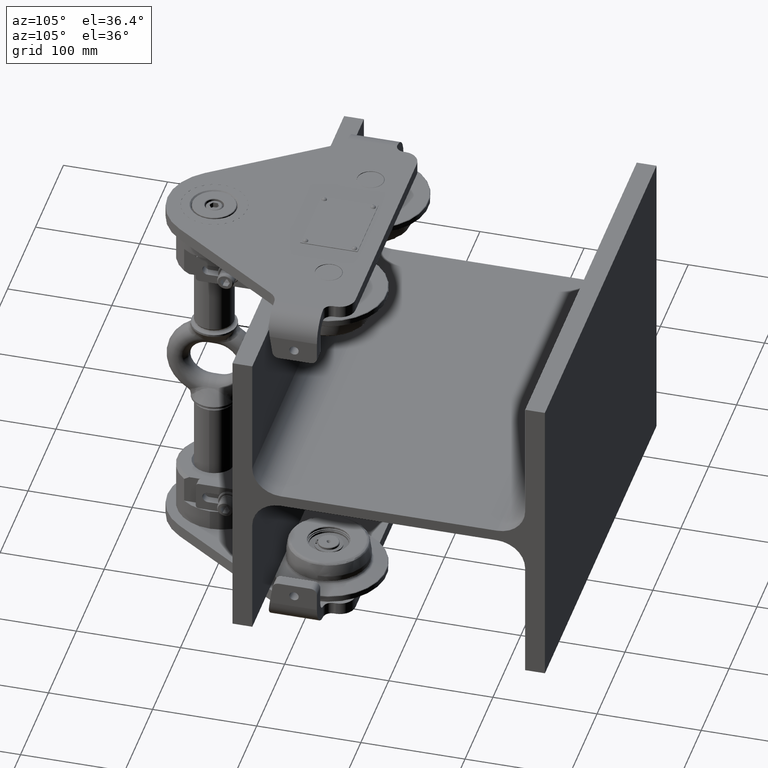
[diagram: clean part render]
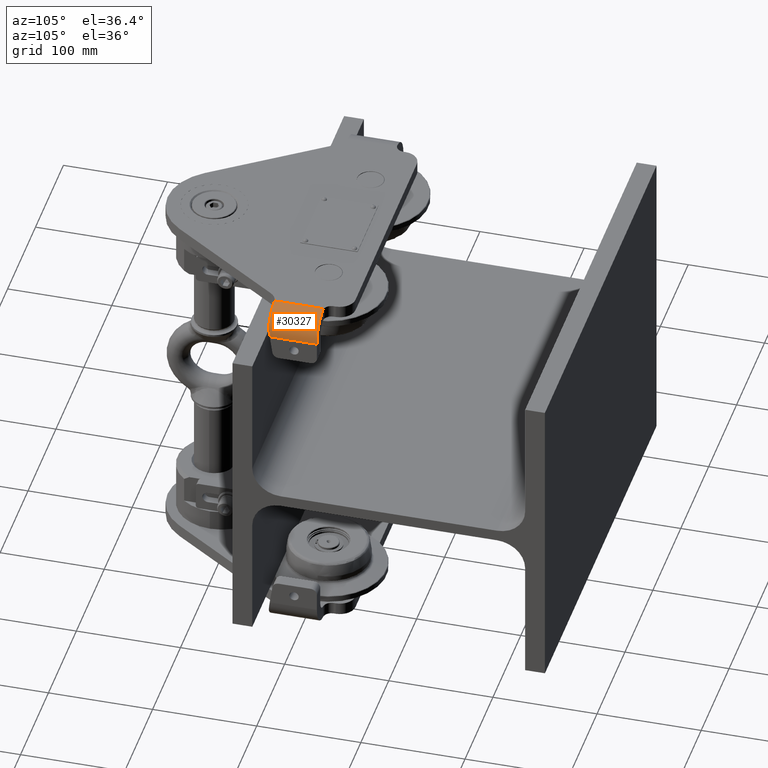
[diagram: same view with one face highlighted and labeled with its STEP entity id]
A machine part, auxiliary view. The second image highlights one B-rep face of the part: STEP entity #30327.
In plain terms, the highlighted cylindrical surface (edge-blend (fillet) strip) has radius 24 mm, axis along (-0, 1, -0).
Its self-contained STEP definition (entity closure, byte-faithful):
#640 = B_SPLINE_CURVE_WITH_KNOTS ( 'NONE', 3,
 ( #6642, #35881, #10839, #35511 ),
 .UNSPECIFIED., .F., .F.,
 ( 4, 4 ),
 ( 0.0000000000000000000, 0.001827743999848610300 ),
 .UNSPECIFIED. ) ;
#2016 = CARTESIAN_POINT ( 'NONE',  ( 153.9032902444616900, -127.4842625883007200, 161.3303376360957200 ) ) ;
#2401 = CARTESIAN_POINT ( 'NONE',  ( 131.6570357428104500, -80.91561259173251100, 176.9999999999999100 ) ) ;
#3962 = VECTOR ( 'NONE', #23849, 1000.000000000000000 ) ;
#4377 = CARTESIAN_POINT ( 'NONE',  ( 151.7846096908264400, -127.9999999999998300, 165.0000000000000900 ) ) ;
#4496 = ORIENTED_EDGE ( 'NONE', *, *, #48512, .F. ) ;
#5822 = CARTESIAN_POINT ( 'NONE',  ( 131.0000000000000000, -80.99999999999981500, 152.9999999999998900 ) ) ;
#6642 = CARTESIAN_POINT ( 'NONE',  ( 131.0000000000000000, -128.1111946732584700, 176.9999999999999100 ) ) ;
#8271 = CARTESIAN_POINT ( 'NONE',  ( 155.0000000000000300, -80.99999999999981500, 152.9999999999998900 ) ) ;
#9029 = EDGE_CURVE ( 'NONE', #53248, #10450, #47266, .T. ) ;
#9134 = VERTEX_POINT ( 'NONE', #10026 ) ;
#10026 = CARTESIAN_POINT ( 'NONE',  ( 132.8230403019121900, -127.9999999999998900, 176.9306607526328000 ) ) ;
#10450 = VERTEX_POINT ( 'NONE', #8271 ) ;
#10544 = CARTESIAN_POINT ( 'NONE',  ( 151.7846096908264400, -127.9999999999998300, 165.0000000000000900 ) ) ;
#10839 = CARTESIAN_POINT ( 'NONE',  ( 132.2139850987201700, -127.9999999999998900, 176.9770586433131100 ) ) ;
#12452 = B_SPLINE_CURVE_WITH_KNOTS ( 'NONE', 3,
 ( #27385, #18798, #2401, #35811 ),
 .UNSPECIFIED., .F., .F.,
 ( 4, 4 ),
 ( 0.0000000000000000000, 0.002017796219549607700 ),
 .UNSPECIFIED. ) ;
#12851 = ORIENTED_EDGE ( 'NONE', *, *, #54131, .T. ) ;
#13691 = EDGE_CURVE ( 'NONE', #36072, #49091, #12452, .T. ) ;
#14490 = DIRECTION ( 'NONE',  ( -1.000000000000000000, 0.0000000000000000000, 0.0000000000000000000 ) ) ;
#15685 = DIRECTION ( 'NONE',  ( -1.110223024625156400E-016, 1.000000000000000000, -2.209635691319292400E-016 ) ) ;
#16562 = VERTEX_POINT ( 'NONE', #4377 ) ;
#17250 = VERTEX_POINT ( 'NONE', #47728 ) ;
#18581 = DIRECTION ( 'NONE',  ( -1.000000000000000000, 0.0000000000000000000, 0.0000000000000000000 ) ) ;
#18798 = CARTESIAN_POINT ( 'NONE',  ( 132.3237767006531000, -80.99999999999981500, 176.9730701193086300 ) ) ;
#20832 = ORIENTED_EDGE ( 'NONE', *, *, #50509, .F. ) ;
#21598 = AXIS2_PLACEMENT_3D ( 'NONE', #31185, #23478, #14490 ) ;
#21907 = ORIENTED_EDGE ( 'NONE', *, *, #45498, .T. ) ;
#22390 = CARTESIAN_POINT ( 'NONE',  ( 155.0000000000000000, -126.3135099835712100, 152.9999999999999100 ) ) ;
#22789 = ORIENTED_EDGE ( 'NONE', *, *, #24880, .T. ) ;
#23478 = DIRECTION ( 'NONE',  ( -1.110223024625156400E-016, 1.000000000000000000, -2.209635691319292400E-016 ) ) ;
#23700 = CYLINDRICAL_SURFACE ( 'NONE', #21598, 24.00000000000002100 ) ;
#23849 = DIRECTION ( 'NONE',  ( -1.110223024625156400E-016, 1.000000000000000000, -2.209635691319292400E-016 ) ) ;
#24880 = EDGE_CURVE ( 'NONE', #10450, #36072, #41937, .T. ) ;
#26170 = LINE ( 'NONE', #36107, #3962 ) ;
#26995 = EDGE_LOOP ( 'NONE', ( #4496, #53138, #22789, #31614, #20832, #12851, #21907 ) ) ;
#27385 = CARTESIAN_POINT ( 'NONE',  ( 133.0000000000000600, -80.99999999999981500, 176.9165214862026700 ) ) ;
#27626 = CARTESIAN_POINT ( 'NONE',  ( 155.0000000000000600, -265.9999999999998900, 152.9999999999999400 ) ) ;
#27903 = AXIS2_PLACEMENT_3D ( 'NONE', #5822, #35037, #18581 ) ;
#28677 = CARTESIAN_POINT ( 'NONE',  ( 131.0000000000000000, -127.9999999999998900, 152.9999999999999100 ) ) ;
#29020 = VECTOR ( 'NONE', #15685, 1000.000000000000000 ) ;
#30327 = ADVANCED_FACE ( 'NONE', ( #35687 ), #23700, .T. ) ;
#31185 = CARTESIAN_POINT ( 'NONE',  ( 131.0000000000000300, -265.9999999999998900, 152.9999999999999400 ) ) ;
#31378 = CARTESIAN_POINT ( 'NONE',  ( 155.0000000000000000, -126.9090322505224000, 157.2373611072703500 ) ) ;
#31614 = ORIENTED_EDGE ( 'NONE', *, *, #13691, .T. ) ;
#31708 = CARTESIAN_POINT ( 'NONE',  ( 131.0000000000000000, -80.74596669241464000, 176.9999999999998900 ) ) ;
#35037 = DIRECTION ( 'NONE',  ( 1.110223024625156400E-016, -1.000000000000000000, 2.209635691319292400E-016 ) ) ;
#35511 = CARTESIAN_POINT ( 'NONE',  ( 132.8230403019121900, -127.9999999999998900, 176.9306607526328000 ) ) ;
#35687 = FACE_OUTER_BOUND ( 'NONE', #26995, .T. ) ;
#35811 = CARTESIAN_POINT ( 'NONE',  ( 131.0000000000000000, -80.74596669241464000, 176.9999999999998900 ) ) ;
#35881 = CARTESIAN_POINT ( 'NONE',  ( 131.6062919497159100, -128.0369580481699400, 176.9999999999999100 ) ) ;
#36072 = VERTEX_POINT ( 'NONE', #45888 ) ;
#36107 = CARTESIAN_POINT ( 'NONE',  ( 131.0000000000000300, -265.9999999999998900, 176.9999999999999400 ) ) ;
#37093 = DIRECTION ( 'NONE',  ( -1.110223024625156400E-016, 1.000000000000000000, -2.209635691319292400E-016 ) ) ;
#38650 = CIRCLE ( 'NONE', #43972, 24.00000000000002100 ) ;
#41937 = CIRCLE ( 'NONE', #27903, 24.00000000000002100 ) ;
#43972 = AXIS2_PLACEMENT_3D ( 'NONE', #28677, #37093, #49636 ) ;
#45498 = EDGE_CURVE ( 'NONE', #9134, #16562, #38650, .T. ) ;
#45888 = CARTESIAN_POINT ( 'NONE',  ( 133.0000000000000600, -80.99999999999981500, 176.9165214862026700 ) ) ;
#47266 = LINE ( 'NONE', #27626, #29020 ) ;
#47728 = CARTESIAN_POINT ( 'NONE',  ( 131.0000000000000000, -128.1111946732584700, 176.9999999999999100 ) ) ;
#48512 = EDGE_CURVE ( 'NONE', #53248, #16562, #52183, .T. ) ;
#49091 = VERTEX_POINT ( 'NONE', #31708 ) ;
#49448 = CARTESIAN_POINT ( 'NONE',  ( 155.0000000000000000, -126.3135099835712100, 152.9999999999999100 ) ) ;
#49636 = DIRECTION ( 'NONE',  ( 1.000000000000000000, 0.0000000000000000000, 1.156482317317870300E-015 ) ) ;
#50509 = EDGE_CURVE ( 'NONE', #17250, #49091, #26170, .T. ) ;
#52183 =( BOUNDED_CURVE ( )  B_SPLINE_CURVE ( 3, ( #22390, #31378, #2016, #10544 ),
 .UNSPECIFIED., .F., .F. ) 
 B_SPLINE_CURVE_WITH_KNOTS ( ( 4, 4 ),
 ( 1.570796326794896800, 2.094395102393203700 ),
 .UNSPECIFIED. ) 
 CURVE ( )  GEOMETRIC_REPRESENTATION_ITEM ( )  RATIONAL_B_SPLINE_CURVE ( ( 1.000000000000000000, 0.9772838841927115100, 0.9772838841927115100, 1.000000000000000000 ) ) 
 REPRESENTATION_ITEM ( '' )  );
#53138 = ORIENTED_EDGE ( 'NONE', *, *, #9029, .T. ) ;
#53248 = VERTEX_POINT ( 'NONE', #49448 ) ;
#54131 = EDGE_CURVE ( 'NONE', #17250, #9134, #640, .T. ) ;